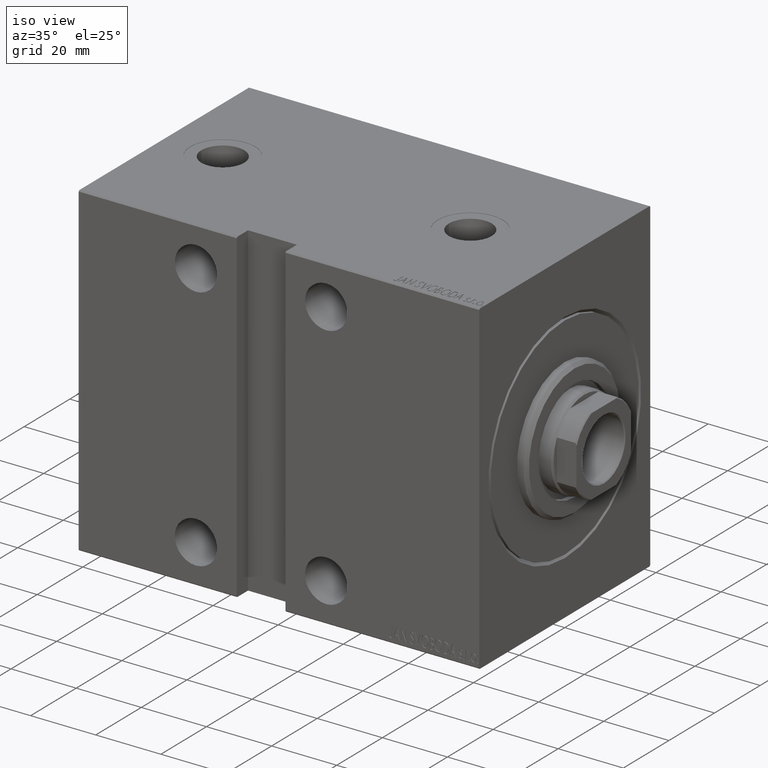
[diagram: clean part render]
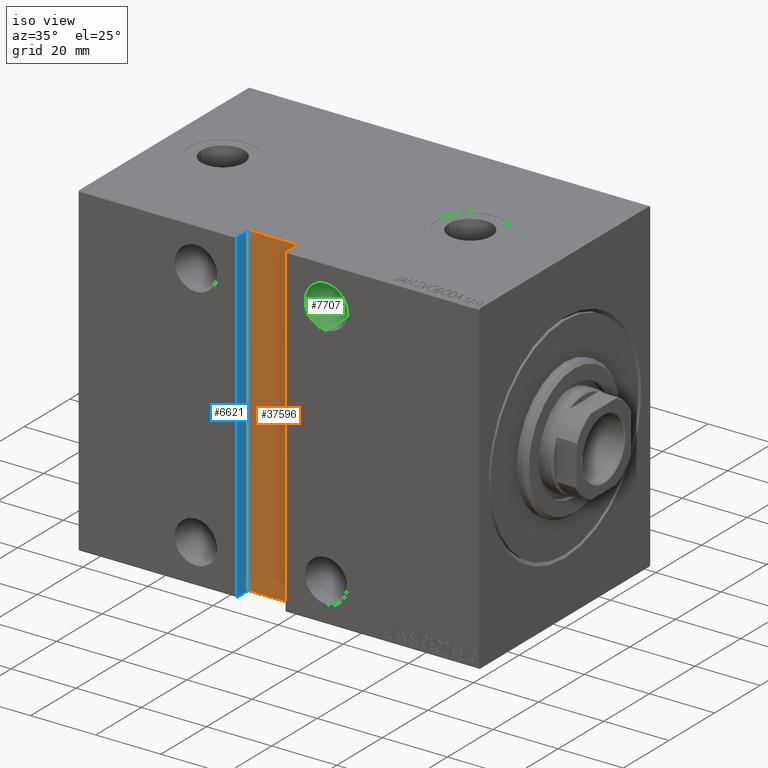
[diagram: same view with three faces highlighted in distinct colors, each labeled with its STEP entity id]
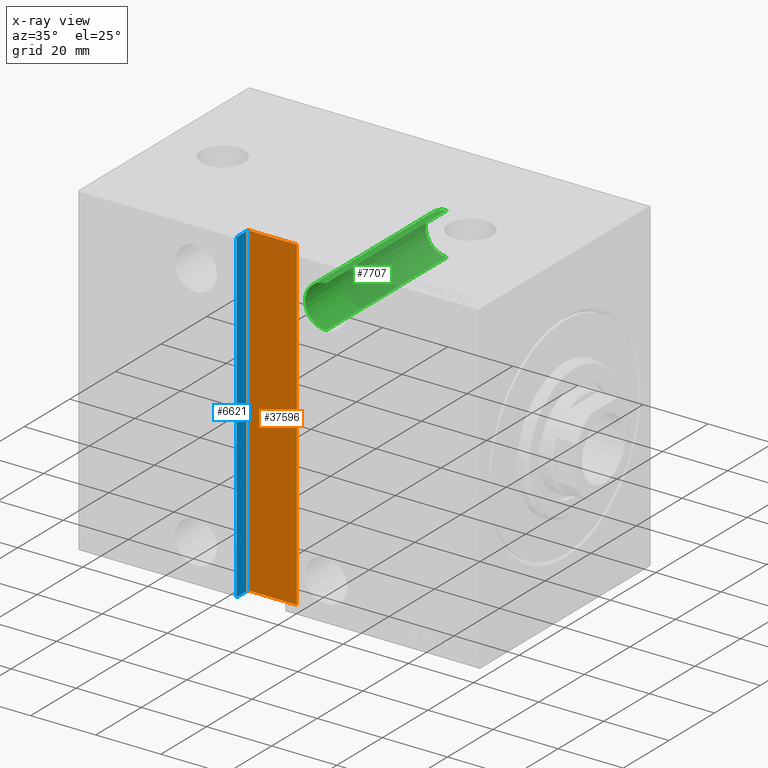
[diagram: x-ray of the same camera — body ghosted, the three highlighted faces saturated]
A machine part, iso view with three faces highlighted in distinct colors.
The next image is the same camera in x-ray (body ghosted, the three faces saturated) — at least one of them is partly hidden behind the body in this view.
Their STEP definitions:

[orange] entity #37596 — the highlighted planar face has unit normal (-0, 1, -0).
#970 = VERTEX_POINT ( 'NONE', #38125 ) ;
#1093 = EDGE_CURVE ( 'NONE', #970, #32520, #30449, .T. ) ;
#1276 = DIRECTION ( 'NONE',  ( -2.775557561562893816E-16, 1.387778780781446908E-16, -1.000000000000000000 ) ) ;
#2132 = CARTESIAN_POINT ( 'NONE',  ( 59.50000000000002842, 32.50000000000000711, -49.99999999999991473 ) ) ;
#3014 = VECTOR ( 'NONE', #5317, 1000.000000000000000 ) ;
#4663 = CARTESIAN_POINT ( 'NONE',  ( 74.50000000000001421, 32.50000000000000711, -49.99999999999991473 ) ) ;
#4973 = LINE ( 'NONE', #32068, #13689 ) ;
#5317 = DIRECTION ( 'NONE',  ( -1.000000000000000000, 0.000000000000000000, 0.000000000000000000 ) ) ;
#5426 = EDGE_CURVE ( 'NONE', #32520, #14973, #34721, .T. ) ;
#5947 = ORIENTED_EDGE ( 'NONE', *, *, #38927, .T. ) ;
#6179 = VECTOR ( 'NONE', #1276, 1000.000000000000000 ) ;
#8358 = PLANE ( 'NONE',  #31828 ) ;
#8898 = DIRECTION ( 'NONE',  ( 0.000000000000000000, -1.387778780781446908E-16, 1.000000000000000000 ) ) ;
#12493 = DIRECTION ( 'NONE',  ( 0.000000000000000000, 1.387778780781446908E-16, -1.000000000000000000 ) ) ;
#12647 = VECTOR ( 'NONE', #24103, 1000.000000000000000 ) ;
#13689 = VECTOR ( 'NONE', #8898, 1000.000000000000000 ) ;
#14973 = VERTEX_POINT ( 'NONE', #37704 ) ;
#18184 = LINE ( 'NONE', #4663, #3014 ) ;
#18388 = ORIENTED_EDGE ( 'NONE', *, *, #1093, .T. ) ;
#18422 = EDGE_LOOP ( 'NONE', ( #5947, #18388, #42256, #25102 ) ) ;
#19050 = FACE_OUTER_BOUND ( 'NONE', #18422, .T. ) ;
#24103 = DIRECTION ( 'NONE',  ( 1.000000000000000000, -0.000000000000000000, -0.000000000000000000 ) ) ;
#24871 = VERTEX_POINT ( 'NONE', #2132 ) ;
#25102 = ORIENTED_EDGE ( 'NONE', *, *, #40423, .T. ) ;
#30018 = CARTESIAN_POINT ( 'NONE',  ( 74.50000000000004263, 32.49999999999999289, 50.00000000000001421 ) ) ;
#30449 = LINE ( 'NONE', #37853, #12647 ) ;
#31223 = CARTESIAN_POINT ( 'NONE',  ( 74.50000000000001421, 32.50000000000000711, -49.99999999999991473 ) ) ;
#31524 = DIRECTION ( 'NONE',  ( 0.000000000000000000, -1.000000000000000000, -1.387778780781446908E-16 ) ) ;
#31828 = AXIS2_PLACEMENT_3D ( 'NONE', #35026, #31524, #12493 ) ;
#32068 = CARTESIAN_POINT ( 'NONE',  ( 59.50000000000002842, 32.50000000000000711, -49.99999999999991473 ) ) ;
#32520 = VERTEX_POINT ( 'NONE', #30018 ) ;
#34721 = LINE ( 'NONE', #31223, #6179 ) ;
#35026 = CARTESIAN_POINT ( 'NONE',  ( 0.000000000000000000, 32.50000000000000000, 4.573361891211586499E-15 ) ) ;
#37596 = ADVANCED_FACE ( 'NONE', ( #19050 ), #8358, .F. ) ;
#37704 = CARTESIAN_POINT ( 'NONE',  ( 74.50000000000004263, 32.50000000000002132, -50.00000000000000711 ) ) ;
#37853 = CARTESIAN_POINT ( 'NONE',  ( 74.50000000000004263, 32.49999999999999289, 50.00000000000001421 ) ) ;
#38125 = CARTESIAN_POINT ( 'NONE',  ( 59.50000000000002842, 32.49999999999999289, 50.00000000000001421 ) ) ;
#38927 = EDGE_CURVE ( 'NONE', #24871, #970, #4973, .T. ) ;
#40423 = EDGE_CURVE ( 'NONE', #14973, #24871, #18184, .T. ) ;
#42256 = ORIENTED_EDGE ( 'NONE', *, *, #5426, .T. ) ;

[blue] entity #6621 — the highlighted planar face has unit normal (-1, -0, -0).
#672 = CARTESIAN_POINT ( 'NONE',  ( 74.50000000000004263, 37.49999999999999289, 49.70000000000000284 ) ) ;
#1276 = DIRECTION ( 'NONE',  ( -2.775557561562893816E-16, 1.387778780781446908E-16, -1.000000000000000000 ) ) ;
#1498 = VECTOR ( 'NONE', #22782, 1000.000000000000000 ) ;
#2708 = DIRECTION ( 'NONE',  ( 1.000000000000000000, 3.501690807976795097E-32, -2.775557561562893816E-16 ) ) ;
#4000 = VERTEX_POINT ( 'NONE', #42319 ) ;
#5376 = CARTESIAN_POINT ( 'NONE',  ( 74.50000000000001421, 32.50000000000000711, -49.99999999999991473 ) ) ;
#5426 = EDGE_CURVE ( 'NONE', #32520, #14973, #34721, .T. ) ;
#5637 = VERTEX_POINT ( 'NONE', #19834 ) ;
#5859 = DIRECTION ( 'NONE',  ( -1.962615573354697696E-16, -0.7071067811865556774, -0.7071067811865393571 ) ) ;
#6179 = VECTOR ( 'NONE', #1276, 1000.000000000000000 ) ;
#6621 = ADVANCED_FACE ( 'NONE', ( #10328 ), #30229, .F. ) ;
#6881 = ORIENTED_EDGE ( 'NONE', *, *, #15493, .T. ) ;
#9147 = VECTOR ( 'NONE', #5859, 1000.000000000000000 ) ;
#9447 = CARTESIAN_POINT ( 'NONE',  ( 74.50000000000001421, 37.50000000000000711, -49.99999999999991473 ) ) ;
#9488 = VECTOR ( 'NONE', #25679, 1000.000000000000000 ) ;
#10328 = FACE_OUTER_BOUND ( 'NONE', #21456, .T. ) ;
#11035 = ORIENTED_EDGE ( 'NONE', *, *, #40980, .F. ) ;
#12196 = VECTOR ( 'NONE', #20780, 1000.000000000000000 ) ;
#13245 = CARTESIAN_POINT ( 'NONE',  ( 74.50000000000004263, 37.20000000000000995, 50.00000000000001421 ) ) ;
#13996 = CARTESIAN_POINT ( 'NONE',  ( 74.50000000000004263, 32.49999999999999289, 50.00000000000001421 ) ) ;
#14727 = EDGE_CURVE ( 'NONE', #5637, #4000, #22236, .T. ) ;
#14973 = VERTEX_POINT ( 'NONE', #37704 ) ;
#15493 = EDGE_CURVE ( 'NONE', #32814, #5637, #29126, .T. ) ;
#16877 = CARTESIAN_POINT ( 'NONE',  ( 74.50000000000001421, 32.50000000000000711, -49.99999999999991473 ) ) ;
#18199 = ORIENTED_EDGE ( 'NONE', *, *, #34212, .T. ) ;
#18680 = DIRECTION ( 'NONE',  ( -0.000000000000000000, 1.000000000000000000, 1.261617073437677752E-16 ) ) ;
#19322 = LINE ( 'NONE', #38585, #9488 ) ;
#19834 = CARTESIAN_POINT ( 'NONE',  ( 74.50000000000001421, 37.50000000000000711, -49.70000000000003126 ) ) ;
#20780 = DIRECTION ( 'NONE',  ( -0.000000000000000000, 1.000000000000000000, 1.261617073437677752E-16 ) ) ;
#21456 = EDGE_LOOP ( 'NONE', ( #6881, #38055, #11035, #26607, #34217, #18199 ) ) ;
#22236 = LINE ( 'NONE', #39292, #9147 ) ;
#22782 = DIRECTION ( 'NONE',  ( -2.775557561562893816E-16, 1.387778780781446908E-16, -1.000000000000000000 ) ) ;
#25679 = DIRECTION ( 'NONE',  ( -1.962615573354743549E-16, 0.7071067811865393571, -0.7071067811865556774 ) ) ;
#26092 = DIRECTION ( 'NONE',  ( -2.775557561562893816E-16, 0.000000000000000000, -1.000000000000000000 ) ) ;
#26607 = ORIENTED_EDGE ( 'NONE', *, *, #5426, .F. ) ;
#27422 = VECTOR ( 'NONE', #18680, 1000.000000000000000 ) ;
#27986 = VERTEX_POINT ( 'NONE', #13245 ) ;
#29126 = LINE ( 'NONE', #9447, #1498 ) ;
#29223 = AXIS2_PLACEMENT_3D ( 'NONE', #16877, #2708, #26092 ) ;
#29298 = EDGE_CURVE ( 'NONE', #32520, #27986, #33918, .T. ) ;
#30018 = CARTESIAN_POINT ( 'NONE',  ( 74.50000000000004263, 32.49999999999999289, 50.00000000000001421 ) ) ;
#30229 = PLANE ( 'NONE',  #29223 ) ;
#31223 = CARTESIAN_POINT ( 'NONE',  ( 74.50000000000001421, 32.50000000000000711, -49.99999999999991473 ) ) ;
#32520 = VERTEX_POINT ( 'NONE', #30018 ) ;
#32814 = VERTEX_POINT ( 'NONE', #672 ) ;
#33918 = LINE ( 'NONE', #13996, #12196 ) ;
#34212 = EDGE_CURVE ( 'NONE', #27986, #32814, #19322, .T. ) ;
#34217 = ORIENTED_EDGE ( 'NONE', *, *, #29298, .T. ) ;
#34721 = LINE ( 'NONE', #31223, #6179 ) ;
#35309 = LINE ( 'NONE', #5376, #27422 ) ;
#37704 = CARTESIAN_POINT ( 'NONE',  ( 74.50000000000004263, 32.50000000000002132, -50.00000000000000711 ) ) ;
#38055 = ORIENTED_EDGE ( 'NONE', *, *, #14727, .T. ) ;
#38585 = CARTESIAN_POINT ( 'NONE',  ( 74.50000000000004263, 37.20000000000000284, 50.00000000000002132 ) ) ;
#39292 = CARTESIAN_POINT ( 'NONE',  ( 74.50000000000001421, 37.50000000000001421, -49.70000000000002416 ) ) ;
#40980 = EDGE_CURVE ( 'NONE', #14973, #4000, #35309, .T. ) ;
#42319 = CARTESIAN_POINT ( 'NONE',  ( 74.50000000000001421, 37.20000000000001705, -49.99999999999991473 ) ) ;

[green] entity #7707 — the highlighted cylindrical surface (edge-blend (fillet) strip) has radius 6.5 mm, axis along (0, -1, 0).
#787 = CIRCLE ( 'NONE', #33587, 6.499999999999999112 ) ;
#2388 = VERTEX_POINT ( 'NONE', #36912 ) ;
#4029 = CARTESIAN_POINT ( 'NONE',  ( 47.00000000000000000, -15.50000000000000000, 37.99999999999998579 ) ) ;
#4698 = CARTESIAN_POINT ( 'NONE',  ( 47.00000000000000000, -37.50000000000003553, 37.99999999999998579 ) ) ;
#4828 = LINE ( 'NONE', #14853, #22566 ) ;
#5482 = DIRECTION ( 'NONE',  ( -0.000000000000000000, 1.000000000000000000, 1.261617073437677752E-16 ) ) ;
#5649 = VERTEX_POINT ( 'NONE', #36878 ) ;
#5818 = VECTOR ( 'NONE', #24845, 1000.000000000000000 ) ;
#7707 = ADVANCED_FACE ( 'NONE', ( #25623 ), #11230, .F. ) ;
#9212 = DIRECTION ( 'NONE',  ( 0.000000000000000000, -1.000000000000000000, -1.387778780781445182E-16 ) ) ;
#10997 = ORIENTED_EDGE ( 'NONE', *, *, #38341, .F. ) ;
#11230 = CYLINDRICAL_SURFACE ( 'NONE', #41119, 6.499999999999999112 ) ;
#14287 = DIRECTION ( 'NONE',  ( -0.000000000000000000, 1.000000000000000000, 1.261617073437677752E-16 ) ) ;
#14853 = CARTESIAN_POINT ( 'NONE',  ( 47.00000000000000000, -37.50000000000003553, 44.49999999999998579 ) ) ;
#15257 = EDGE_CURVE ( 'NONE', #31163, #2388, #787, .T. ) ;
#16408 = DIRECTION ( 'NONE',  ( 0.000000000000000000, 0.000000000000000000, -1.000000000000000000 ) ) ;
#17329 = DIRECTION ( 'NONE',  ( -0.000000000000000000, 1.000000000000000000, -0.000000000000000000 ) ) ;
#20109 = ORIENTED_EDGE ( 'NONE', *, *, #15257, .F. ) ;
#20375 = CARTESIAN_POINT ( 'NONE',  ( 47.00000000000000000, -15.50000000000000000, 44.49999999999998579 ) ) ;
#21122 = CARTESIAN_POINT ( 'NONE',  ( 47.00000000000000000, -37.50000000000003553, 31.49999999999998579 ) ) ;
#21289 = DIRECTION ( 'NONE',  ( 0.000000000000000000, 0.000000000000000000, 1.000000000000000000 ) ) ;
#22566 = VECTOR ( 'NONE', #5482, 1000.000000000000000 ) ;
#22666 = CARTESIAN_POINT ( 'NONE',  ( 47.00000000000000000, 37.49999999999999289, 44.49999999999999289 ) ) ;
#23688 = DIRECTION ( 'NONE',  ( 0.000000000000000000, 0.000000000000000000, -1.000000000000000000 ) ) ;
#24111 = ORIENTED_EDGE ( 'NONE', *, *, #25437, .T. ) ;
#24845 = DIRECTION ( 'NONE',  ( -0.000000000000000000, 1.000000000000000000, 1.261617073437677752E-16 ) ) ;
#25437 = EDGE_CURVE ( 'NONE', #31163, #39910, #4828, .T. ) ;
#25623 = FACE_OUTER_BOUND ( 'NONE', #34267, .T. ) ;
#31163 = VERTEX_POINT ( 'NONE', #20375 ) ;
#32107 = ORIENTED_EDGE ( 'NONE', *, *, #41630, .F. ) ;
#33239 = AXIS2_PLACEMENT_3D ( 'NONE', #39166, #9212, #16408 ) ;
#33587 = AXIS2_PLACEMENT_3D ( 'NONE', #4029, #17329, #23688 ) ;
#34267 = EDGE_LOOP ( 'NONE', ( #32107, #20109, #24111, #10997 ) ) ;
#34617 = CIRCLE ( 'NONE', #33239, 6.499999999999999112 ) ;
#36878 = CARTESIAN_POINT ( 'NONE',  ( 47.00000000000000000, 37.49999999999999289, 31.49999999999999289 ) ) ;
#36912 = CARTESIAN_POINT ( 'NONE',  ( 47.00000000000000000, -15.50000000000000000, 31.49999999999998579 ) ) ;
#38341 = EDGE_CURVE ( 'NONE', #5649, #39910, #34617, .T. ) ;
#39166 = CARTESIAN_POINT ( 'NONE',  ( 47.00000000000000000, 37.49999999999999289, 37.99999999999999289 ) ) ;
#39910 = VERTEX_POINT ( 'NONE', #22666 ) ;
#41119 = AXIS2_PLACEMENT_3D ( 'NONE', #4698, #14287, #21289 ) ;
#41630 = EDGE_CURVE ( 'NONE', #2388, #5649, #41907, .T. ) ;
#41907 = LINE ( 'NONE', #21122, #5818 ) ;